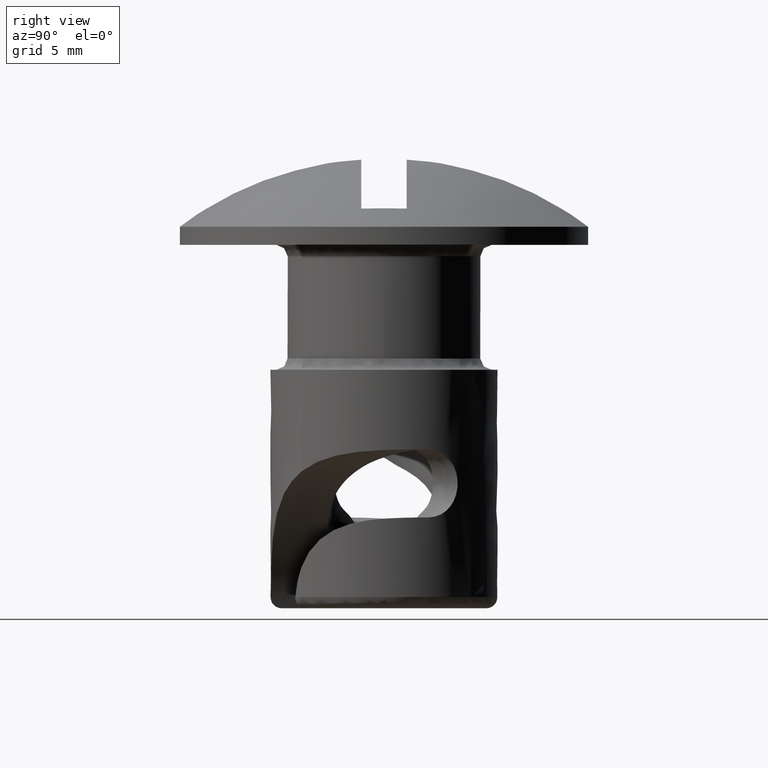
[diagram: clean part render]
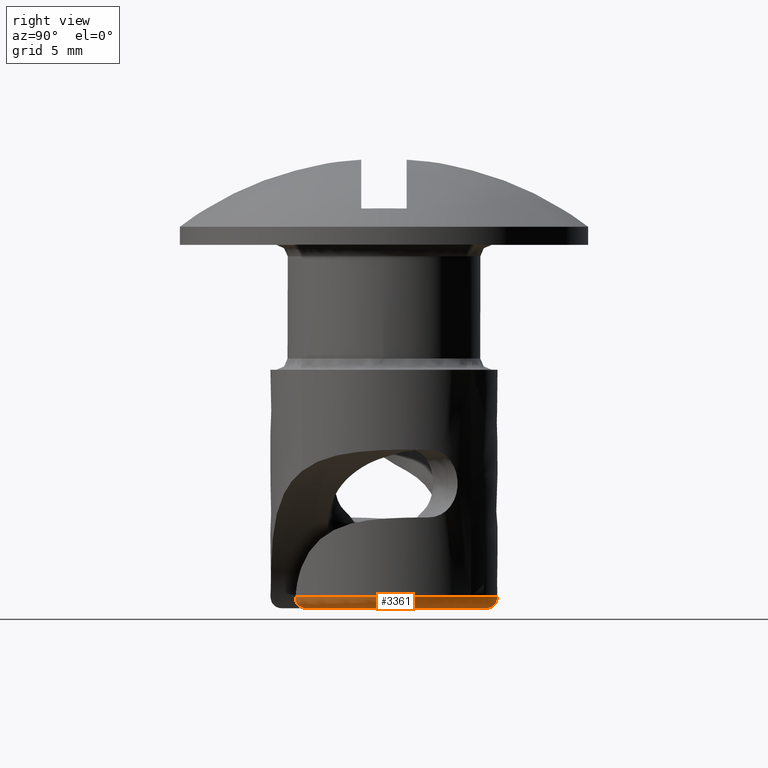
[diagram: same view with one face highlighted and labeled with its STEP entity id]
A machine part, right view. The second image highlights one B-rep face of the part: STEP entity #3361.
In plain terms, the highlighted face is a freeform B-spline surface patch.
Its self-contained STEP definition (entity closure, byte-faithful):
#984=CARTESIAN_POINT('',(3.124495312218485,-3.903527769073090,-15.499991999999949));
#985=VERTEX_POINT('',#984);
#1001=CARTESIAN_POINT('',(3.441770825680575,-3.626873803082489,-15.499991999999949));
#1002=VERTEX_POINT('',#1001);
#1003=CARTESIAN_POINT('',(3.124495312218484,-3.903527769073089,-15.499991999999949));
#1004=CARTESIAN_POINT('',(3.288961146527734,-3.771884609674898,-15.499991999999951));
#1005=CARTESIAN_POINT('',(3.441770825680576,-3.626873803082489,-15.499991999999953));
#1013=(BOUNDED_CURVE()B_SPLINE_CURVE(2,(#1003,#1004,#1005),.UNSPECIFIED.,.F.,.U.)B_SPLINE_CURVE_WITH_KNOTS((3,3),(0.0,0.035159629120937),.UNSPECIFIED.)CURVE()GEOMETRIC_REPRESENTATION_ITEM()RATIONAL_B_SPLINE_CURVE((1.0,0.986404467794485,0.974720991069161))REPRESENTATION_ITEM(''));
#1014=EDGE_CURVE('',#985,#1002,#1013,.T.);
#1046=CARTESIAN_POINT('',(3.205213323675819,3.837526227888151,-15.499991999999949));
#1047=VERTEX_POINT('',#1046);
#1048=CARTESIAN_POINT('',(-0.313195905412206,4.990181191583430,-15.499991999999949));
#1049=VERTEX_POINT('',#1048);
#1050=CARTESIAN_POINT('',(3.205213323675819,3.837526227888151,-15.499991999999947));
#1051=CARTESIAN_POINT('',(1.675712281617383,5.115009905512517,-15.499991999999947));
#1052=CARTESIAN_POINT('',(-0.313195905412204,4.990181191583432,-15.499991999999949));
#1060=(BOUNDED_CURVE()B_SPLINE_CURVE(2,(#1050,#1051,#1052),.UNSPECIFIED.,.F.,.U.)B_SPLINE_CURVE_WITH_KNOTS((3,3),(0.701706621039978,1.0),.UNSPECIFIED.)CURVE()GEOMETRIC_REPRESENTATION_ITEM()RATIONAL_B_SPLINE_CURVE((0.906937291754929,0.884655858388226,1.0))REPRESENTATION_ITEM(''));
#1061=EDGE_CURVE('',#1047,#1049,#1060,.T.);
#1347=CARTESIAN_POINT('',(3.441770825680576,-3.626873803082489,-15.499991999999953));
#1348=CARTESIAN_POINT('',(5.871267625966241,-1.321370038050244,-15.499991999999958));
#1349=CARTESIAN_POINT('',(4.663728750462750,1.802674164153677,-15.499991999999949));
#1350=CARTESIAN_POINT('',(4.197570122198777,3.008681017828000,-15.499991999999949));
#1351=CARTESIAN_POINT('',(3.205213323675819,3.837526227888151,-15.499991999999947));
#1359=(BOUNDED_CURVE()B_SPLINE_CURVE(2,(#1347,#1348,#1349,#1350,#1351),.UNSPECIFIED.,.F.,.U.)B_SPLINE_CURVE_WITH_KNOTS((3,2,3),(0.035159629120937,0.500000000000000,0.701706621039978),.UNSPECIFIED.)CURVE()GEOMETRIC_REPRESENTATION_ITEM()RATIONAL_B_SPLINE_CURVE((0.974720991069161,0.820255435261504,1.0,0.922004044667764,0.906937291754929))REPRESENTATION_ITEM(''));
#1360=EDGE_CURVE('',#1002,#1047,#1359,.T.);
#2380=CARTESIAN_POINT('',(-0.085926736938831,4.499179546970655,-15.999992000000001));
#2381=VERTEX_POINT('',#2380);
#2382=CARTESIAN_POINT('',(-0.085926736938831,4.499179546970655,-15.999992000000001));
#2383=CARTESIAN_POINT('',(-0.099323386829687,4.530740090304493,-15.999992000014441));
#2384=CARTESIAN_POINT('',(-0.112514948671494,4.561830365591248,-15.996982507674900));
#2385=CARTESIAN_POINT('',(-0.138512566770734,4.623070058957920,-15.985107271363860));
#2386=CARTESIAN_POINT('',(-0.151372913173382,4.653347832798081,-15.976191638592320));
#2387=CARTESIAN_POINT('',(-0.176517242522227,4.712335603826626,-15.952256780752000));
#2388=CARTESIAN_POINT('',(-0.188511817925167,4.740365641031780,-15.937540437744209));
#2389=CARTESIAN_POINT('',(-0.205717921178870,4.780207127594330,-15.911385875600701));
#2390=CARTESIAN_POINT('',(-0.211321637625100,4.793117980129820,-15.901983380206699));
#2391=CARTESIAN_POINT('',(-0.222271157668035,4.818168450778483,-15.881762240879480));
#2392=CARTESIAN_POINT('',(-0.227646493351384,4.830374038537223,-15.870873922467251));
#2393=CARTESIAN_POINT('',(-0.243104211517104,4.865120905863295,-15.836599099187699));
#2394=CARTESIAN_POINT('',(-0.252551265329909,4.885876374978815,-15.811622758348429));
#2395=CARTESIAN_POINT('',(-0.269855555540414,4.922516928318114,-15.757422027989049));
#2396=CARTESIAN_POINT('',(-0.277788428082757,4.938535296295918,-15.727807117909670));
#2397=CARTESIAN_POINT('',(-0.291479740881821,4.964145045134797,-15.666365880076951));
#2398=CARTESIAN_POINT('',(-0.297290747804784,4.973871177412904,-15.634504893099979));
#2399=CARTESIAN_POINT('',(-0.306881423756249,4.987005521835658,-15.568459685655490));
#2400=CARTESIAN_POINT('',(-0.310638657178372,4.990341690701627,-15.534245837189230));
#2401=CARTESIAN_POINT('',(-0.313195905412206,4.990181191583430,-15.499991999999949));
#2402=B_SPLINE_CURVE_WITH_KNOTS('',3,(#2382,#2383,#2384,#2385,#2386,#2387,#2388,#2389,#2390,#2391,#2392,#2393,#2394,#2395,#2396,#2397,#2398,#2399,#2400,#2401),.UNSPECIFIED.,.F.,.U.,(4,2,2,2,2,2,2,2,2,4),(0.0,0.124999999999996,0.249999999999992,0.374999999999987,0.437499999999985,0.499999999999983,0.624999999999987,0.749999999999991,0.874999999999996,1.0),.UNSPECIFIED.);
#2403=EDGE_CURVE('',#2381,#1049,#2402,.T.);
#2976=CARTESIAN_POINT('',(2.896918640165445,-3.443524704755395,-15.999992000000001));
#2977=VERTEX_POINT('',#2976);
#2983=CARTESIAN_POINT('',(2.896918640165445,-3.443524704755395,-15.999992000000001));
#2984=CARTESIAN_POINT('',(2.909889189432822,-3.474081417485037,-15.999992000000759));
#2985=CARTESIAN_POINT('',(2.923021819837627,-3.505054235038329,-15.996922881049359));
#2986=CARTESIAN_POINT('',(2.948669416768151,-3.565505323732224,-15.984703099098979));
#2987=CARTESIAN_POINT('',(2.961139438958384,-3.594877012203891,-15.975652397903310));
#2988=CARTESIAN_POINT('',(2.985478999398874,-3.651857279100224,-15.951640814191530));
#2989=CARTESIAN_POINT('',(2.997464732142973,-3.679730140566452,-15.936457934648089));
#2990=CARTESIAN_POINT('',(3.020039974598830,-3.731364012551214,-15.901018757520641));
#2991=CARTESIAN_POINT('',(3.030708981726142,-3.755318579432675,-15.880756257858980));
#2992=CARTESIAN_POINT('',(3.050972737207837,-3.799267595590207,-15.834952383326160));
#2993=CARTESIAN_POINT('',(3.060580441599802,-3.819256380815890,-15.809249986614720));
#2994=CARTESIAN_POINT('',(3.077945257254089,-3.853009577604857,-15.754785231273690));
#2995=CARTESIAN_POINT('',(3.085834371612837,-3.867073106805312,-15.725763609522650));
#2996=CARTESIAN_POINT('',(3.100123528991507,-3.889144019222624,-15.663933270004570));
#2997=CARTESIAN_POINT('',(3.106329958785515,-3.896824353267458,-15.631905578042961));
#2998=CARTESIAN_POINT('',(3.116820683262037,-3.905330474000194,-15.566872531932720));
#2999=CARTESIAN_POINT('',(3.121169159247872,-3.906190117077117,-15.533426551885260));
#3000=CARTESIAN_POINT('',(3.124495312218485,-3.903527769073090,-15.499991999999949));
#3001=B_SPLINE_CURVE_WITH_KNOTS('',3,(#2983,#2984,#2985,#2986,#2987,#2988,#2989,#2990,#2991,#2992,#2993,#2994,#2995,#2996,#2997,#2998,#2999,#3000),.UNSPECIFIED.,.F.,.U.,(4,2,2,2,2,2,2,2,4),(0.0,0.124999999999999,0.249999999999998,0.374999999999998,0.499999999999997,0.624999999999996,0.749999999999995,0.874999999999994,1.0),.UNSPECIFIED.);
#3002=EDGE_CURVE('',#2977,#985,#3001,.T.);
#3316=CARTESIAN_POINT('',(2.345967740213492,-3.799195983453358,-15.998775139905803));
#3317=CARTESIAN_POINT('',(5.488101797776458,-1.858957794485674,-15.998775139905804));
#3318=CARTESIAN_POINT('',(4.171907393413742,1.591428119517277,-15.998775139905797));
#3319=CARTESIAN_POINT('',(2.846785480182041,5.065217377848822,-15.998775139905806));
#3320=CARTESIAN_POINT('',(-0.809548188813178,4.391137265993838,-15.998775139905796));
#3321=CARTESIAN_POINT('',(2.647298253972449,-4.287188063626116,-16.038861820410425));
#3322=CARTESIAN_POINT('',(6.193027319955607,-2.097733757883026,-16.038861820410428));
#3323=CARTESIAN_POINT('',(4.707772817589500,1.795840927351093,-16.038861820410428));
#3324=CARTESIAN_POINT('',(3.212444102251042,5.715825026285235,-16.038861820410432));
#3325=CARTESIAN_POINT('',(-0.913531533283852,4.955161922286687,-16.038861820410432));
#3326=CARTESIAN_POINT('',(2.626350045802008,-4.253263322472411,-15.465317074728317));
#3327=CARTESIAN_POINT('',(6.144021574075261,-2.081134282028595,-15.465317074728326));
#3328=CARTESIAN_POINT('',(4.670519967498272,1.781630345097772,-15.465317074728327));
#3329=CARTESIAN_POINT('',(3.187023865717861,5.670595406865978,-15.465317074728318));
#3330=CARTESIAN_POINT('',(-0.906302710954983,4.915951469399278,-15.465317074728320));
#3338=(BOUNDED_SURFACE()B_SPLINE_SURFACE(2,2,((#3316,#3321,#3326),(#3317,#3322,#3327),(#3318,#3323,#3328),(#3319,#3324,#3329),(#3320,#3325,#3330)),.UNSPECIFIED.,.F.,.F.,.U.)B_SPLINE_SURFACE_WITH_KNOTS((3,2,3),(3,3),(0.0,7.197408844549178,14.431877442318230),(0.0,0.911184965848953),.UNSPECIFIED.)GEOMETRIC_REPRESENTATION_ITEM()RATIONAL_B_SPLINE_SURFACE(((0.889703854162175,0.585469418757261,0.894659051497359),(0.694828976097940,0.457232049595699,0.698698819613468),(0.913811225187559,0.601333268774286,0.918900688301300),(0.693701427519546,0.456490066510288,0.697564991163760),(0.891721664073507,0.586797238110210,0.896688099582213)))REPRESENTATION_ITEM('')SURFACE());
#3339=CARTESIAN_POINT('',(-0.085926736938832,4.499179546970653,-15.999992000000001));
#3340=CARTESIAN_POINT('',(3.094408222547057,4.559918577851320,-15.999991999999999));
#3341=CARTESIAN_POINT('',(4.212725552133523,1.582069348164392,-15.999992000000001));
#3342=CARTESIAN_POINT('',(5.331042881719990,-1.395779881522537,-15.999991999999999));
#3343=CARTESIAN_POINT('',(2.896918640165445,-3.443524704755395,-15.999992000000001));
#3351=(BOUNDED_CURVE()B_SPLINE_CURVE(2,(#3339,#3340,#3341,#3342,#3343),.UNSPECIFIED.,.F.,.U.)B_SPLINE_CURVE_WITH_KNOTS((3,2,3),(0.0,0.500000000000000,1.0),.UNSPECIFIED.)CURVE()GEOMETRIC_REPRESENTATION_ITEM()RATIONAL_B_SPLINE_CURVE((1.0,0.816587725479251,1.0,0.816587725479251,1.0))REPRESENTATION_ITEM(''));
#3352=EDGE_CURVE('',#2381,#2977,#3351,.T.);
#3353=ORIENTED_EDGE('',*,*,#3352,.F.);
#3354=ORIENTED_EDGE('',*,*,#2403,.T.);
#3355=ORIENTED_EDGE('',*,*,#1061,.F.);
#3356=ORIENTED_EDGE('',*,*,#1360,.F.);
#3357=ORIENTED_EDGE('',*,*,#1014,.F.);
#3358=ORIENTED_EDGE('',*,*,#3002,.F.);
#3359=EDGE_LOOP('',(#3353,#3354,#3355,#3356,#3357,#3358));
#3360=FACE_OUTER_BOUND('',#3359,.T.);
#3361=ADVANCED_FACE('',(#3360),#3338,.T.);